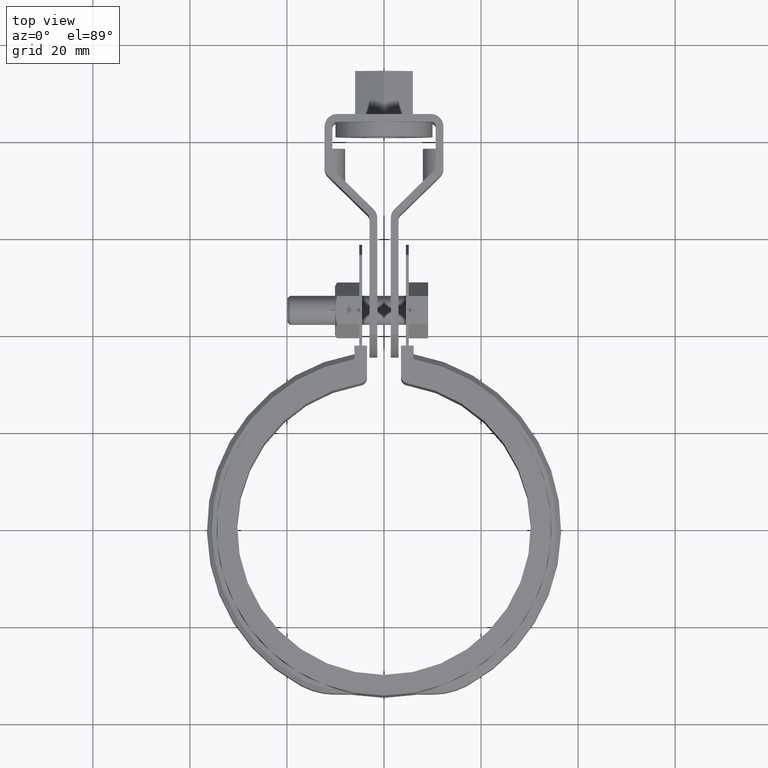
[diagram: clean part render]
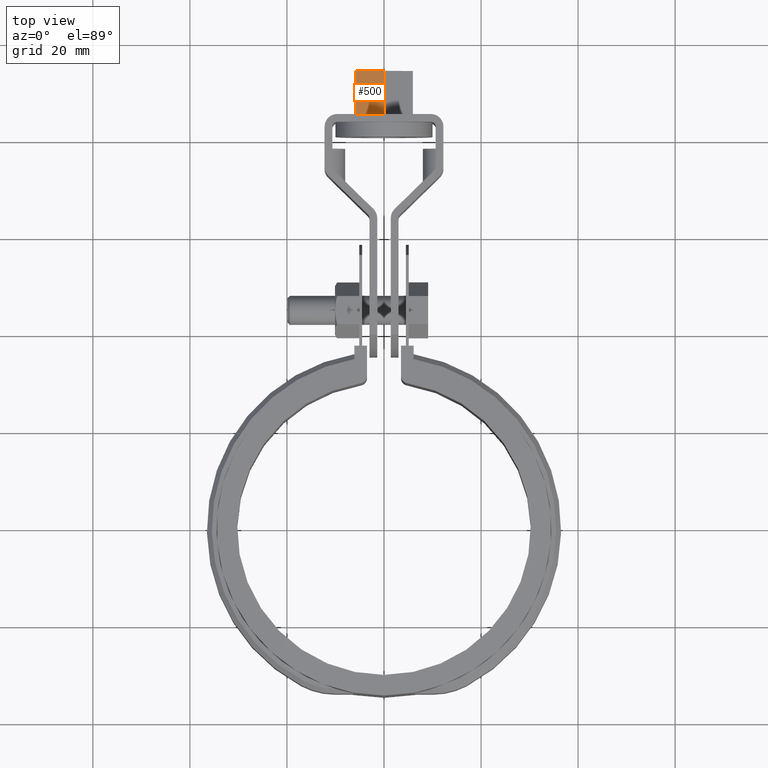
[diagram: same view with one face highlighted and labeled with its STEP entity id]
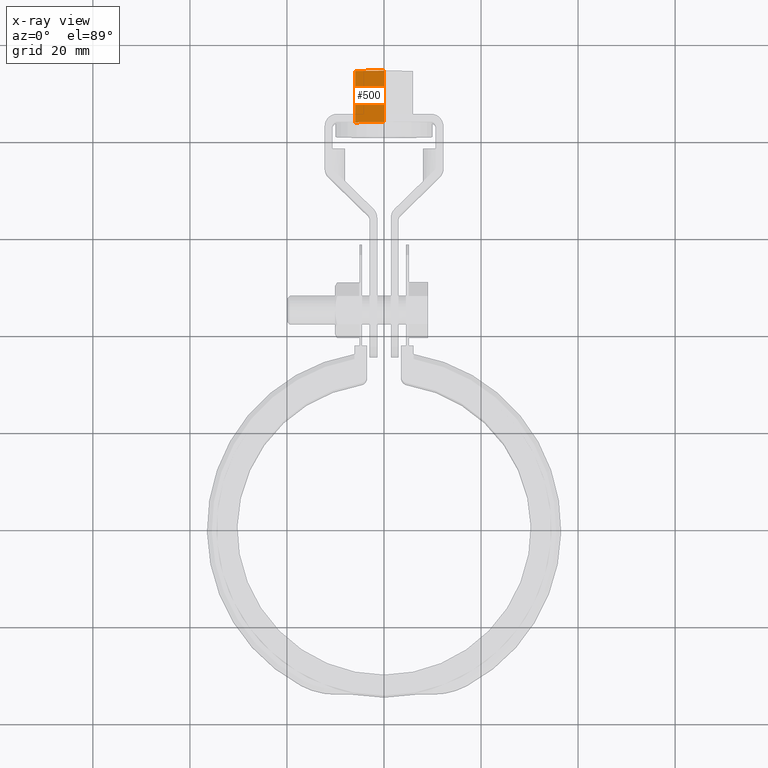
[diagram: x-ray of the same camera — body ghosted, the highlighted face saturated]
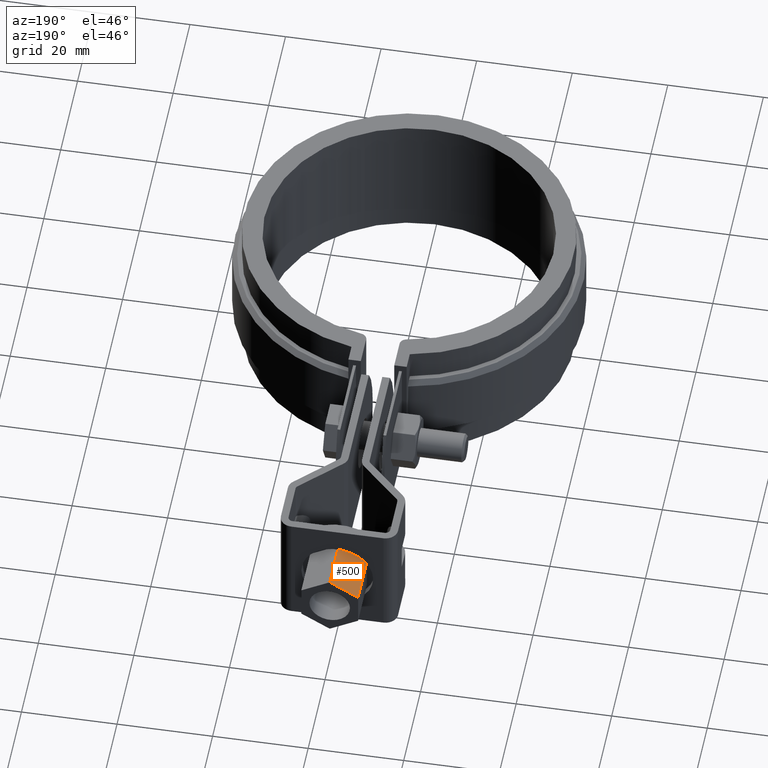
[diagram: same view with one face highlighted and labeled with its STEP entity id]
A machine part, top view. The second image highlights one B-rep face of the part: STEP entity #500.
The next image is the same camera in x-ray: the body ghosted, the highlighted face saturated — about 0% of this face is hidden behind the body in this view.
A second angle (auxiliary view) of the same face is appended — the face is thin or edge-on in the first view.
In plain terms, the highlighted planar face has unit normal (0.5, -0, -0.866).
Its self-contained STEP definition (entity closure, byte-faithful):
#500 = ADVANCED_FACE( '', ( #936 ), #937, .F. );
#936 = FACE_OUTER_BOUND( '', #1939, .T. );
#937 = PLANE( '', #1940 );
#1939 = EDGE_LOOP( '', ( #4481, #4482, #4483, #4484 ) );
#1940 = AXIS2_PLACEMENT_3D( '', #4485, #4486, #4487 );
#4481 = ORIENTED_EDGE( '', *, *, #5266, .T. );
#4482 = ORIENTED_EDGE( '', *, *, #5279, .F. );
#4483 = ORIENTED_EDGE( '', *, *, #5280, .F. );
#4484 = ORIENTED_EDGE( '', *, *, #5277, .T. );
#4485 = CARTESIAN_POINT( '', ( -5.95000000004883, 94.4015111816957, -9.06476590784969 ) );
#4486 = DIRECTION( '', ( 0.499999999999659, -5.51023812373904E-011, -0.866025403784636 ) );
#4487 = DIRECTION( '', ( -0.866025403784636, -3.19168343914953E-011, -0.499999999999659 ) );
#5266 = EDGE_CURVE( '', #6204, #6202, #6205, .T. );
#5277 = EDGE_CURVE( '', #6223, #6204, #6224, .T. );
#5279 = EDGE_CURVE( '', #6226, #6202, #6227, .T. );
#5280 = EDGE_CURVE( '', #6223, #6226, #6228, .T. );
#6202 = VERTEX_POINT( '', #9432 );
#6204 = VERTEX_POINT( '', #9435 );
#6205 = LINE( '', #9436, #9437 );
#6223 = VERTEX_POINT( '', #9462 );
#6224 = LINE( '', #9463, #9464 );
#6226 = VERTEX_POINT( '', #9467 );
#6227 = LINE( '', #9468, #9469 );
#6228 = LINE( '', #9470, #9471 );
#9432 = CARTESIAN_POINT( '', ( -4.65232418877879E-011, 83.8015111819150, -5.62953180549876 ) );
#9435 = CARTESIAN_POINT( '', ( -5.95000000004787, 83.8015111816957, -9.06476590717470 ) );
#9436 = CARTESIAN_POINT( '', ( -5.95000000004788, 83.8015111816957, -9.06476590717469 ) );
#9437 = VECTOR( '', #10381, 1000.00000000000 );
#9462 = CARTESIAN_POINT( '', ( -5.95000000004882, 94.4015111816957, -9.06476590784970 ) );
#9463 = CARTESIAN_POINT( '', ( -5.95000000004882, 94.4015111816957, -9.06476590784970 ) );
#9464 = VECTOR( '', #10398, 1000.00000000000 );
#9467 = CARTESIAN_POINT( '', ( -4.74729888788919E-011, 94.4015111819150, -5.62953180617376 ) );
#9468 = CARTESIAN_POINT( '', ( -4.74729888788919E-011, 94.4015111819150, -5.62953180617376 ) );
#9469 = VECTOR( '', #10400, 1000.00000000000 );
#9470 = CARTESIAN_POINT( '', ( -5.95000000004883, 94.4015111816957, -9.06476590784969 ) );
#9471 = VECTOR( '', #10401, 1000.00000000000 );
#10381 = DIRECTION( '', ( 0.866025403784636, 3.19168343914953E-011, 0.499999999999659 ) );
#10398 = DIRECTION( '', ( 8.95987727456561E-014, -1.00000000000000, 6.36784791563427E-011 ) );
#10400 = DIRECTION( '', ( 8.95987727456561E-014, -1.00000000000000, 6.36784791563427E-011 ) );
#10401 = DIRECTION( '', ( 0.866025403784636, 3.19168343914953E-011, 0.499999999999659 ) );